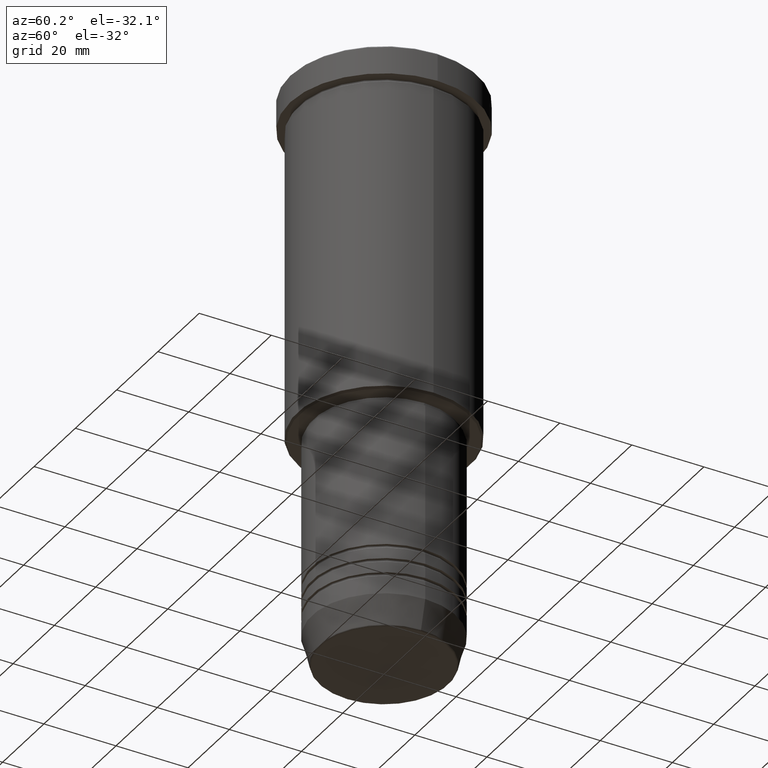
[diagram: clean part render]
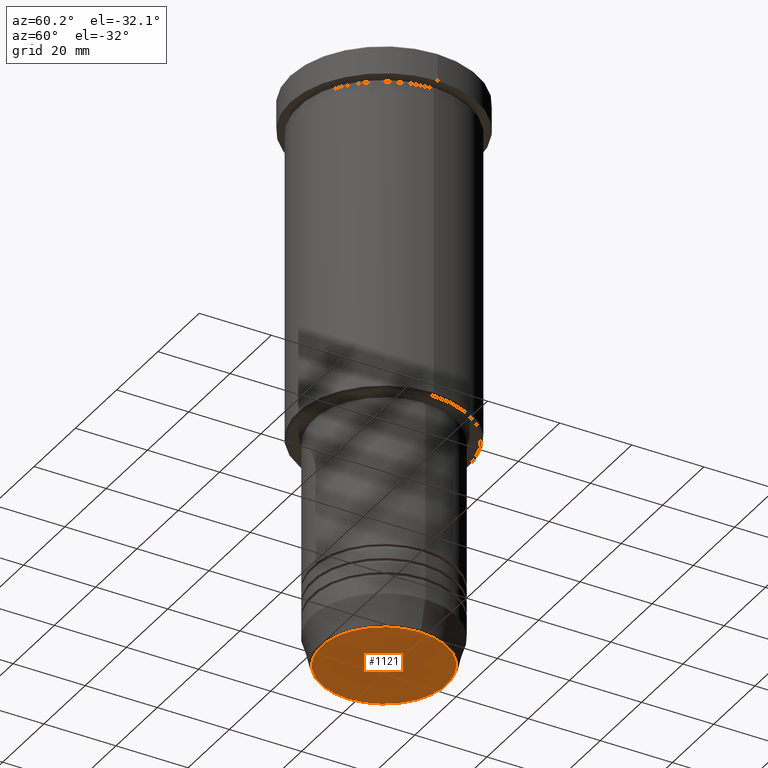
[diagram: same view with one face highlighted and labeled with its STEP entity id]
A machine part, auxiliary view. The second image highlights one B-rep face of the part: STEP entity #1121.
In plain terms, the highlighted planar face has unit normal (0, -0, 1).
Its self-contained STEP definition (entity closure, byte-faithful):
#28 = EDGE_CURVE ( 'NONE', #1146, #406, #1079, .T. ) ;
#84 = DIRECTION ( 'NONE',  ( 0.000000000000000000, 0.000000000000000000, -1.000000000000000000 ) ) ;
#99 = DIRECTION ( 'NONE',  ( 0.000000000000000000, 0.000000000000000000, -1.000000000000000000 ) ) ;
#178 = AXIS2_PLACEMENT_3D ( 'NONE', #1087, #99, #743 ) ;
#256 = CARTESIAN_POINT ( 'NONE',  ( 0.000000000000000000, 0.000000000000000000, -160.0000000000000284 ) ) ;
#359 = CARTESIAN_POINT ( 'NONE',  ( 17.47274296656154036, 0.000000000000000000, -160.0000000000000284 ) ) ;
#406 = VERTEX_POINT ( 'NONE', #697 ) ;
#442 = EDGE_CURVE ( 'NONE', #406, #1146, #1063, .T. ) ;
#524 = EDGE_LOOP ( 'NONE', ( #723, #574 ) ) ;
#574 = ORIENTED_EDGE ( 'NONE', *, *, #442, .T. ) ;
#575 = AXIS2_PLACEMENT_3D ( 'NONE', #646, #1176, #920 ) ;
#646 = CARTESIAN_POINT ( 'NONE',  ( 0.000000000000000000, 0.000000000000000000, -160.0000000000000284 ) ) ;
#697 = CARTESIAN_POINT ( 'NONE',  ( -17.47274296656154036, 2.169366823916868503E-15, -160.0000000000000284 ) ) ;
#723 = ORIENTED_EDGE ( 'NONE', *, *, #28, .T. ) ;
#729 = DIRECTION ( 'NONE',  ( 1.000000000000000000, 0.000000000000000000, 0.000000000000000000 ) ) ;
#734 = PLANE ( 'NONE',  #575 ) ;
#743 = DIRECTION ( 'NONE',  ( 1.000000000000000000, 0.000000000000000000, 0.000000000000000000 ) ) ;
#835 = FACE_OUTER_BOUND ( 'NONE', #524, .T. ) ;
#920 = DIRECTION ( 'NONE',  ( 1.000000000000000000, 0.000000000000000000, 0.000000000000000000 ) ) ;
#1063 = CIRCLE ( 'NONE', #178, 17.47274296656154036 ) ;
#1079 = CIRCLE ( 'NONE', #1124, 17.47274296656154036 ) ;
#1087 = CARTESIAN_POINT ( 'NONE',  ( 0.000000000000000000, 0.000000000000000000, -160.0000000000000284 ) ) ;
#1121 = ADVANCED_FACE ( 'NONE', ( #835 ), #734, .F. ) ;
#1124 = AXIS2_PLACEMENT_3D ( 'NONE', #256, #84, #729 ) ;
#1146 = VERTEX_POINT ( 'NONE', #359 ) ;
#1176 = DIRECTION ( 'NONE',  ( 0.000000000000000000, -0.000000000000000000, 1.000000000000000000 ) ) ;